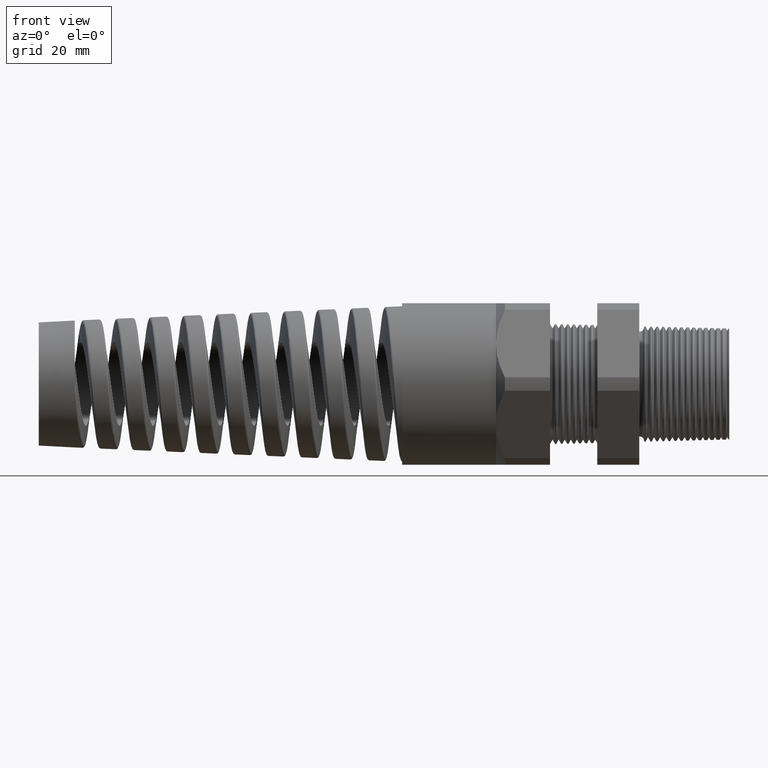
[diagram: clean part render]
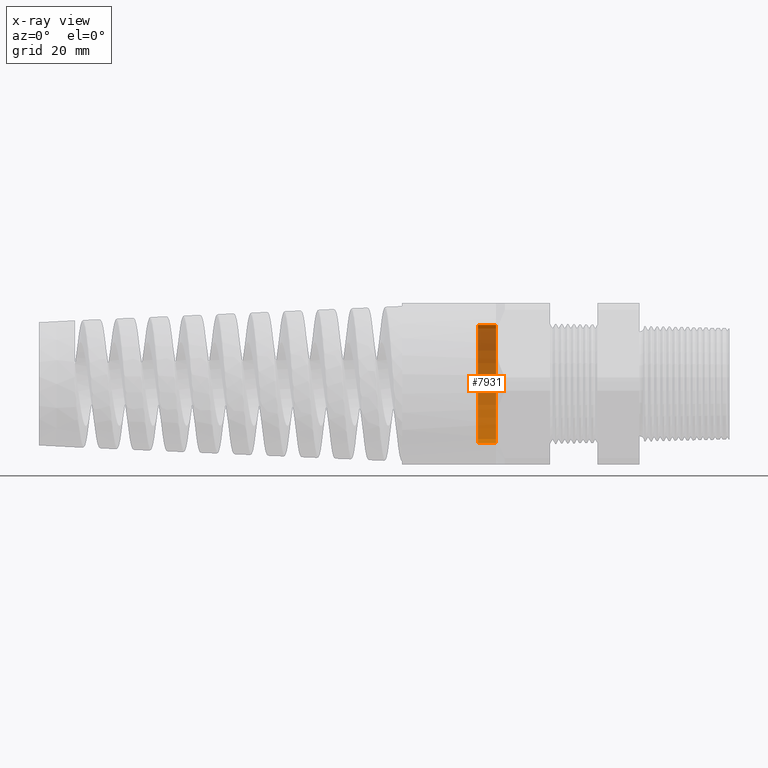
[diagram: x-ray — body ghosted, one internal face saturated and labeled with its STEP entity id]
A machine part, front view, then the same camera in x-ray: the body is ghosted and one INTERNAL B-rep face — a face not visible from any outside direction — is saturated and labeled: STEP entity #7931.
In plain terms, the highlighted cylindrical surface (partial cylindrical patch) has radius 9.8273 mm, axis along (1, -0, -0).
Its self-contained STEP definition (entity closure, byte-faithful):
#553 = DIRECTION ( 'NONE',  ( 1.000000000000000000, -0.0000000000000000000, -0.0000000000000000000 ) ) ;
#554 = VECTOR ( 'NONE', #553, 39.37007874015748100 ) ;
#555 = CARTESIAN_POINT ( 'NONE',  ( 1.326736918405036800, 0.0000000000000000000, -0.3869000000000000200 ) ) ;
#556 = LINE ( 'NONE', #555, #554 ) ;
#557 = CARTESIAN_POINT ( 'NONE',  ( -1.250551181102362200, 0.0000000000000000000, -0.3869000000000000200 ) ) ;
#558 = DIRECTION ( 'NONE',  ( 0.0000000000000000000, 0.0000000000000000000, -1.000000000000000000 ) ) ;
#559 = DIRECTION ( 'NONE',  ( 1.000000000000000000, -0.0000000000000000000, -0.0000000000000000000 ) ) ;
#560 = CARTESIAN_POINT ( 'NONE',  ( -1.250551181102362200, 0.0000000000000000000, 0.0000000000000000000 ) ) ;
#561 = AXIS2_PLACEMENT_3D ( 'NONE', #560, #559, #558 ) ;
#562 = CIRCLE ( 'NONE', #561, 0.3869000000000000200 ) ;
#563 = CARTESIAN_POINT ( 'NONE',  ( -1.250551181102362200, 4.738158465901109900E-017, 0.3869000000000000200 ) ) ;
#564 = DIRECTION ( 'NONE',  ( 1.000000000000000000, -0.0000000000000000000, -0.0000000000000000000 ) ) ;
#565 = VECTOR ( 'NONE', #564, 39.37007874015748100 ) ;
#566 = CARTESIAN_POINT ( 'NONE',  ( 1.326736918405036800, 4.738158465901109900E-017, 0.3869000000000000200 ) ) ;
#567 = LINE ( 'NONE', #566, #565 ) ;
#568 = DIRECTION ( 'NONE',  ( 0.0000000000000000000, 0.0000000000000000000, -1.000000000000000000 ) ) ;
#569 = DIRECTION ( 'NONE',  ( 1.000000000000000000, -0.0000000000000000000, -0.0000000000000000000 ) ) ;
#570 = CARTESIAN_POINT ( 'NONE',  ( 1.326736918405036800, 0.0000000000000000000, 0.0000000000000000000 ) ) ;
#571 = AXIS2_PLACEMENT_3D ( 'NONE', #570, #569, #568 ) ;
#572 = CYLINDRICAL_SURFACE ( 'NONE', #571, 0.3869000000000000200 ) ;
#573 = FACE_OUTER_BOUND ( 'NONE', #7932, .T. ) ;
#802 = CARTESIAN_POINT ( 'NONE',  ( -1.369999999999999900, 0.0000000000000000000, -0.3868999999999999700 ) ) ;
#839 = DIRECTION ( 'NONE',  ( 0.0000000000000000000, 0.0000000000000000000, -1.000000000000000000 ) ) ;
#840 = DIRECTION ( 'NONE',  ( 1.000000000000000000, -0.0000000000000000000, -0.0000000000000000000 ) ) ;
#841 = CARTESIAN_POINT ( 'NONE',  ( -1.369999999999999900, 0.0000000000000000000, 0.0000000000000000000 ) ) ;
#842 = AXIS2_PLACEMENT_3D ( 'NONE', #841, #840, #839 ) ;
#843 = CIRCLE ( 'NONE', #842, 0.3868999999999999700 ) ;
#844 = CARTESIAN_POINT ( 'NONE',  ( -1.369999999999999900, 4.738158465901109300E-017, 0.3868999999999999700 ) ) ;
#7931 = ADVANCED_FACE ( 'NONE', ( #573 ), #572, .T. ) ;
#7932 = EDGE_LOOP ( 'NONE', ( #7933, #7934, #7937, #7940 ) ) ;
#7933 = ORIENTED_EDGE ( 'NONE', *, *, #7991, .T. ) ;
#7934 = ORIENTED_EDGE ( 'NONE', *, *, #7935, .T. ) ;
#7935 = EDGE_CURVE ( 'NONE', #7989, #7936, #567, .T. ) ;
#7936 = VERTEX_POINT ( 'NONE', #563 ) ;
#7937 = ORIENTED_EDGE ( 'NONE', *, *, #7938, .F. ) ;
#7938 = EDGE_CURVE ( 'NONE', #7939, #7936, #562, .T. ) ;
#7939 = VERTEX_POINT ( 'NONE', #557 ) ;
#7940 = ORIENTED_EDGE ( 'NONE', *, *, #7941, .F. ) ;
#7941 = EDGE_CURVE ( 'NONE', #8007, #7939, #556, .T. ) ;
#7989 = VERTEX_POINT ( 'NONE', #844 ) ;
#7991 = EDGE_CURVE ( 'NONE', #8007, #7989, #843, .T. ) ;
#8007 = VERTEX_POINT ( 'NONE', #802 ) ;